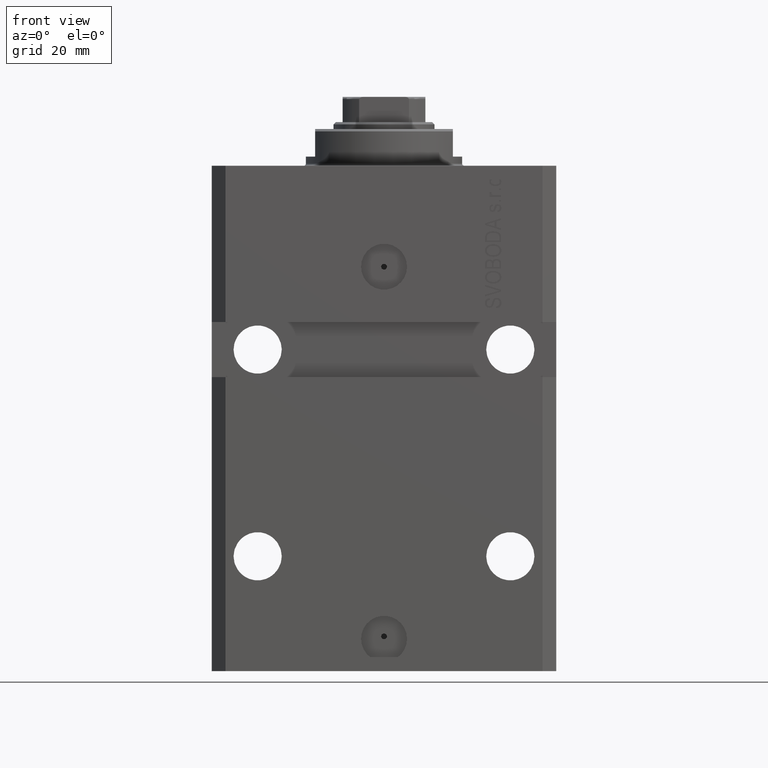
[diagram: clean part render]
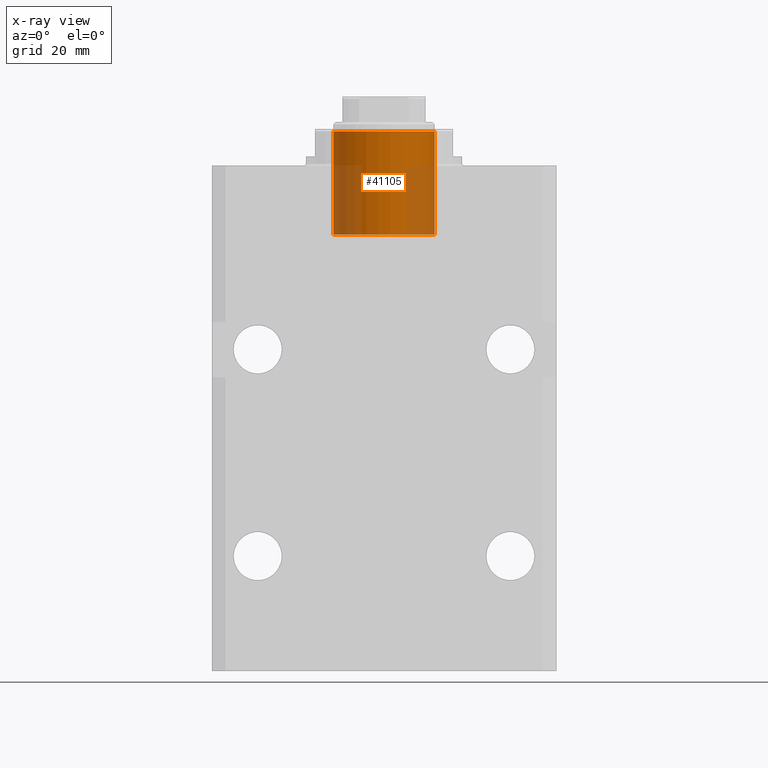
[diagram: x-ray — body ghosted, one internal face saturated and labeled with its STEP entity id]
A machine part, front view, then the same camera in x-ray: the body is ghosted and one INTERNAL B-rep face — a face not visible from any outside direction — is saturated and labeled: STEP entity #41105.
In plain terms, the highlighted cylindrical surface (partial cylindrical patch) has radius 11 mm, axis along (0, -0, 1).
Its self-contained STEP definition (entity closure, byte-faithful):
#1157 = LINE ( 'NONE', #37979, #5633 ) ;
#2527 = VERTEX_POINT ( 'NONE', #21141 ) ;
#5503 = VERTEX_POINT ( 'NONE', #27450 ) ;
#5633 = VECTOR ( 'NONE', #38931, 1000.000000000000000 ) ;
#8721 = ORIENTED_EDGE ( 'NONE', *, *, #32523, .T. ) ;
#10515 = CYLINDRICAL_SURFACE ( 'NONE', #47583, 11.00000000000000000 ) ;
#10983 = DIRECTION ( 'NONE',  ( -1.000000000000000000, 0.000000000000000000, 0.000000000000000000 ) ) ;
#11500 = EDGE_CURVE ( 'NONE', #5503, #29193, #21643, .T. ) ;
#11542 = CARTESIAN_POINT ( 'NONE',  ( -11.00000000000000000, 0.000000000000000000, 15.00000000000000000 ) ) ;
#11787 = ORIENTED_EDGE ( 'NONE', *, *, #11500, .F. ) ;
#12103 = AXIS2_PLACEMENT_3D ( 'NONE', #17157, #46466, #13293 ) ;
#13293 = DIRECTION ( 'NONE',  ( -1.000000000000000000, 0.000000000000000000, 0.000000000000000000 ) ) ;
#17157 = CARTESIAN_POINT ( 'NONE',  ( 0.000000000000000000, 0.000000000000000000, -7.500000000000000000 ) ) ;
#17282 = CARTESIAN_POINT ( 'NONE',  ( 0.000000000000000000, 0.000000000000000000, 15.00000000000000000 ) ) ;
#19328 = AXIS2_PLACEMENT_3D ( 'NONE', #26415, #25951, #33437 ) ;
#21133 = VECTOR ( 'NONE', #45430, 1000.000000000000000 ) ;
#21141 = CARTESIAN_POINT ( 'NONE',  ( 11.00000000000000000, 1.347111479062088405E-15, -7.500000000000000000 ) ) ;
#21156 = DIRECTION ( 'NONE',  ( -0.000000000000000000, -0.000000000000000000, -1.000000000000000000 ) ) ;
#21643 = CIRCLE ( 'NONE', #19328, 11.00000000000000000 ) ;
#24485 = CIRCLE ( 'NONE', #12103, 11.00000000000000000 ) ;
#24747 = VERTEX_POINT ( 'NONE', #30459 ) ;
#25875 = ORIENTED_EDGE ( 'NONE', *, *, #35109, .T. ) ;
#25951 = DIRECTION ( 'NONE',  ( 0.000000000000000000, 0.000000000000000000, -1.000000000000000000 ) ) ;
#26415 = CARTESIAN_POINT ( 'NONE',  ( 0.000000000000000000, 0.000000000000000000, 15.00000000000000000 ) ) ;
#26944 = ORIENTED_EDGE ( 'NONE', *, *, #37215, .F. ) ;
#27450 = CARTESIAN_POINT ( 'NONE',  ( 11.00000000000000000, 1.347111479062088405E-15, 15.00000000000000000 ) ) ;
#29193 = VERTEX_POINT ( 'NONE', #44171 ) ;
#30459 = CARTESIAN_POINT ( 'NONE',  ( -11.00000000000000000, 0.000000000000000000, -7.500000000000000000 ) ) ;
#30891 = LINE ( 'NONE', #11542, #21133 ) ;
#32523 = EDGE_CURVE ( 'NONE', #2527, #24747, #24485, .T. ) ;
#33437 = DIRECTION ( 'NONE',  ( -1.000000000000000000, 0.000000000000000000, 0.000000000000000000 ) ) ;
#35109 = EDGE_CURVE ( 'NONE', #5503, #2527, #1157, .T. ) ;
#36665 = FACE_OUTER_BOUND ( 'NONE', #46750, .T. ) ;
#37215 = EDGE_CURVE ( 'NONE', #29193, #24747, #30891, .T. ) ;
#37979 = CARTESIAN_POINT ( 'NONE',  ( 11.00000000000000000, 1.347111479062088405E-15, 15.00000000000000000 ) ) ;
#38931 = DIRECTION ( 'NONE',  ( -0.000000000000000000, -0.000000000000000000, -1.000000000000000000 ) ) ;
#41105 = ADVANCED_FACE ( 'NONE', ( #36665 ), #10515, .F. ) ;
#44171 = CARTESIAN_POINT ( 'NONE',  ( -11.00000000000000000, 0.000000000000000000, 15.00000000000000000 ) ) ;
#45430 = DIRECTION ( 'NONE',  ( -0.000000000000000000, -0.000000000000000000, -1.000000000000000000 ) ) ;
#46466 = DIRECTION ( 'NONE',  ( 0.000000000000000000, 0.000000000000000000, -1.000000000000000000 ) ) ;
#46750 = EDGE_LOOP ( 'NONE', ( #11787, #25875, #8721, #26944 ) ) ;
#47583 = AXIS2_PLACEMENT_3D ( 'NONE', #17282, #21156, #10983 ) ;